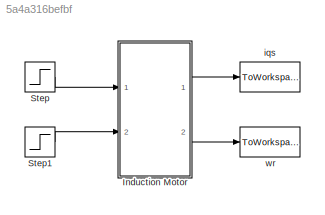
MODEL slx_5a4a316befbf
KIND model
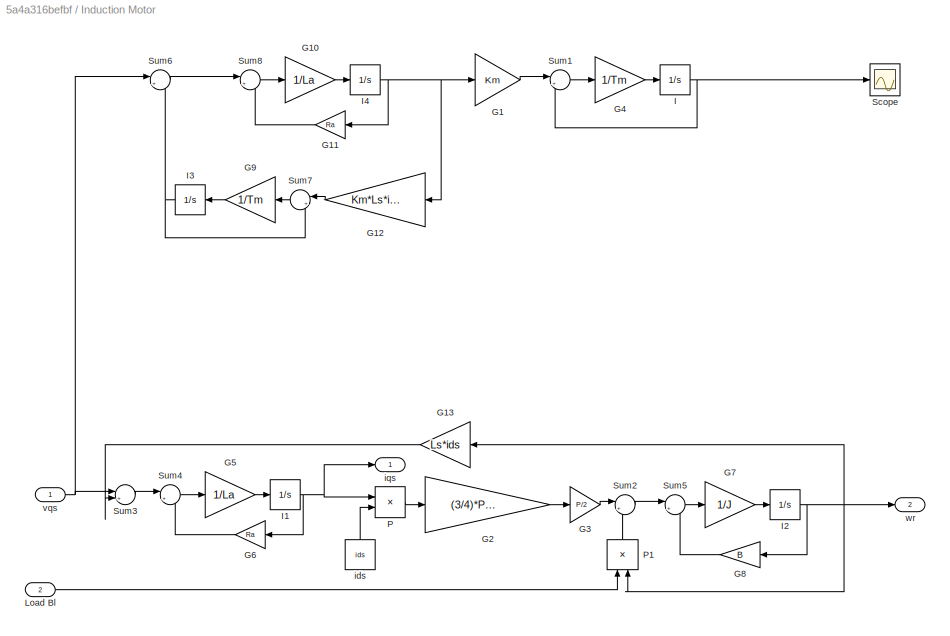
BLOCK [SubSystem] Induction Motor
  FunctionWithSeparateData = off
  MaskHideContents = off
  MinAlgLoopOccurrences = off
  Opaque = off
  Ports = [2, 2]
  PropExecContextOutsideSubsystem = off
  RTWSystemCode = Auto
  RequestExecContextInheritance = off
BLOCK [Gain] Induction Motor/G1
  Gain = Km
  OutDataTypeStr = Inherit: Inherit via internal rule
  ParamDataTypeStr = Inherit: Inherit via internal rule
  SaturateOnIntegerOverflow = off
BLOCK [Gain] Induction Motor/G10
  Gain = 1/La
  OutDataTypeStr = Inherit: Inherit via internal rule
  ParamDataTypeStr = Inherit: Inherit via internal rule
  SaturateOnIntegerOverflow = off
BLOCK [Gain] Induction Motor/G11
  Gain = Ra
  OutDataTypeStr = Inherit: Inherit via internal rule
  ParamDataTypeStr = Inherit: Inherit via internal rule
  SaturateOnIntegerOverflow = off
BLOCK [Gain] Induction Motor/G12
  Gain = Km*Ls*ids
  OutDataTypeStr = Inherit: Inherit via internal rule
  ParamDataTypeStr = Inherit: Inherit via internal rule
  SaturateOnIntegerOverflow = off
BLOCK [Gain] Induction Motor/G13
  Gain = Ls*ids
  OutDataTypeStr = Inherit: Inherit via internal rule
  ParamDataTypeStr = Inherit: Inherit via internal rule
  SaturateOnIntegerOverflow = off
BLOCK [Gain] Induction Motor/G2
  Gain = (3/4)*P*((Lm*Lm)/Lr)
  OutDataTypeStr = Inherit: Inherit via internal rule
  ParamDataTypeStr = Inherit: Inherit via internal rule
  SaturateOnIntegerOverflow = off
BLOCK [Gain] Induction Motor/G3
  Gain = P/2
  OutDataTypeStr = Inherit: Inherit via internal rule
  ParamDataTypeStr = Inherit: Inherit via internal rule
  SaturateOnIntegerOverflow = off
BLOCK [Gain] Induction Motor/G4
  Gain = 1/Tm
  OutDataTypeStr = Inherit: Inherit via internal rule
  ParamDataTypeStr = Inherit: Inherit via internal rule
  SaturateOnIntegerOverflow = off
BLOCK [Gain] Induction Motor/G5
  Gain = 1/La
  OutDataTypeStr = Inherit: Inherit via internal rule
  ParamDataTypeStr = Inherit: Inherit via internal rule
  SaturateOnIntegerOverflow = off
BLOCK [Gain] Induction Motor/G6
  Gain = Ra
  OutDataTypeStr = Inherit: Inherit via internal rule
  ParamDataTypeStr = Inherit: Inherit via internal rule
  SaturateOnIntegerOverflow = off
BLOCK [Gain] Induction Motor/G7
  Gain = 1/J
  OutDataTypeStr = Inherit: Inherit via internal rule
  ParamDataTypeStr = Inherit: Inherit via internal rule
  SaturateOnIntegerOverflow = off
BLOCK [Gain] Induction Motor/G8
  Gain = B
  OutDataTypeStr = Inherit: Inherit via internal rule
  ParamDataTypeStr = Inherit: Inherit via internal rule
  SaturateOnIntegerOverflow = off
BLOCK [Gain] Induction Motor/G9
  Gain = 1/Tm
  OutDataTypeStr = Inherit: Inherit via internal rule
  ParamDataTypeStr = Inherit: Inherit via internal rule
  SaturateOnIntegerOverflow = off
BLOCK [Integrator] Induction Motor/I
  Ports = [1, 1]
BLOCK [Integrator] Induction Motor/I1
  Ports = [1, 1]
BLOCK [Integrator] Induction Motor/I2
  Ports = [1, 1]
BLOCK [Integrator] Induction Motor/I3
  Ports = [1, 1]
BLOCK [Integrator] Induction Motor/I4
  Ports = [1, 1]
BLOCK [Inport] Induction Motor/Load Bl
  IconDisplay = Port number
  Port = 2
BLOCK [Product] Induction Motor/P
  InputSameDT = off
  OutDataTypeStr = Inherit: Inherit via internal rule
  Ports = [2, 1]
  RndMeth = Floor
  SaturateOnIntegerOverflow = off
BLOCK [Product] Induction Motor/P1
  InputSameDT = off
  OutDataTypeStr = Inherit: Inherit via internal rule
  Ports = [2, 1]
  RndMeth = Floor
  SaturateOnIntegerOverflow = off
BLOCK [Scope] Induction Motor/Scope
  DataFormat = StructureWithTime
  Floating = off
  NumInputPorts = 1
  Ports = [1]
  SampleTime = 0
  ShowLegends = off
BLOCK [Sum] Induction Motor/Sum1
  IconShape = round
  InputSameDT = off
  Inputs = |+-
  OutDataTypeStr = Inherit: Inherit via internal rule
  Ports = [2, 1]
  SaturateOnIntegerOverflow = off
BLOCK [Sum] Induction Motor/Sum2
  IconShape = round
  InputSameDT = off
  Inputs = |+-
  OutDataTypeStr = Inherit: Inherit via internal rule
  Ports = [2, 1]
  SaturateOnIntegerOverflow = off
BLOCK [Sum] Induction Motor/Sum3
  IconShape = round
  InputSameDT = off
  Inputs = |+-
  OutDataTypeStr = Inherit: Inherit via internal rule
  Ports = [2, 1]
  SaturateOnIntegerOverflow = off
BLOCK [Sum] Induction Motor/Sum4
  IconShape = round
  InputSameDT = off
  Inputs = |+-
  OutDataTypeStr = Inherit: Inherit via internal rule
  Ports = [2, 1]
  SaturateOnIntegerOverflow = off
BLOCK [Sum] Induction Motor/Sum5
  IconShape = round
  InputSameDT = off
  Inputs = |+-
  OutDataTypeStr = Inherit: Inherit via internal rule
  Ports = [2, 1]
  SaturateOnIntegerOverflow = off
BLOCK [Sum] Induction Motor/Sum6
  IconShape = round
  InputSameDT = off
  Inputs = |+-
  OutDataTypeStr = Inherit: Inherit via internal rule
  Ports = [2, 1]
  SaturateOnIntegerOverflow = off
BLOCK [Sum] Induction Motor/Sum7
  IconShape = round
  InputSameDT = off
  Inputs = |+-
  OutDataTypeStr = Inherit: Inherit via internal rule
  Ports = [2, 1]
  SaturateOnIntegerOverflow = off
BLOCK [Sum] Induction Motor/Sum8
  IconShape = round
  InputSameDT = off
  Inputs = |+-
  OutDataTypeStr = Inherit: Inherit via internal rule
  Ports = [2, 1]
  SaturateOnIntegerOverflow = off
BLOCK [Constant] Induction Motor/ids
  Value = ids
BLOCK [Outport] Induction Motor/iqs
  IconDisplay = Port number
BLOCK [Inport] Induction Motor/vqs
  IconDisplay = Port number
BLOCK [Outport] Induction Motor/wr
  IconDisplay = Port number
  Port = 2
BLOCK [Step] Step
  After = 200*sqrt(2)/sqrt(3)
  SampleTime = 0
  Time = 0.1
BLOCK [Step] Step1
  After = 0.025
  SampleTime = 0
  Time = 0.3
BLOCK [ToWorkspace] iqs
  MaxDataPoints = inf
  Ports = [1]
  SampleTime = -1
  SaveFormat = Timeseries
  VariableName = iqs
BLOCK [ToWorkspace] wr
  MaxDataPoints = inf
  Ports = [1]
  SampleTime = -1
  SaveFormat = Timeseries
  VariableName = wr
LINE Induction Motor/G10:1 -> Induction Motor/I4:1
LINE Induction Motor/G11:1 -> Induction Motor/Sum8:2
LINE Induction Motor/G12:1 -> Induction Motor/Sum7:1
LINE Induction Motor/G13:1 -> Induction Motor/Sum3:2
LINE Induction Motor/G1:1 -> Induction Motor/Sum1:1
LINE Induction Motor/G2:1 -> Induction Motor/G3:1
LINE Induction Motor/G3:1 -> Induction Motor/Sum2:1
LINE Induction Motor/G4:1 -> Induction Motor/I:1
LINE Induction Motor/G5:1 -> Induction Motor/I1:1
LINE Induction Motor/G6:1 -> Induction Motor/Sum4:2
LINE Induction Motor/G7:1 -> Induction Motor/I2:1
LINE Induction Motor/G8:1 -> Induction Motor/Sum5:2
LINE Induction Motor/G9:1 -> Induction Motor/I3:1
NET Induction Motor/I1:1 -> Induction Motor/G6:1, Induction Motor/P:1, Induction Motor/iqs:1
NET Induction Motor/I2:1 -> Induction Motor/G13:1, Induction Motor/G8:1, Induction Motor/P1:2, Induction Motor/wr:1
NET Induction Motor/I3:1 -> Induction Motor/Sum6:2, Induction Motor/Sum7:2
NET Induction Motor/I4:1 -> Induction Motor/G11:1, Induction Motor/G12:1, Induction Motor/G1:1
NET Induction Motor/I:1 -> Induction Motor/Scope:1, Induction Motor/Sum1:2
LINE Induction Motor/Load Bl:1 -> Induction Motor/P1:1
LINE Induction Motor/P1:1 -> Induction Motor/Sum2:2
LINE Induction Motor/P:1 -> Induction Motor/G2:1
LINE Induction Motor/Sum1:1 -> Induction Motor/G4:1
LINE Induction Motor/Sum2:1 -> Induction Motor/Sum5:1
LINE Induction Motor/Sum3:1 -> Induction Motor/Sum4:1
LINE Induction Motor/Sum4:1 -> Induction Motor/G5:1
LINE Induction Motor/Sum5:1 -> Induction Motor/G7:1
LINE Induction Motor/Sum6:1 -> Induction Motor/Sum8:1
LINE Induction Motor/Sum7:1 -> Induction Motor/G9:1
LINE Induction Motor/Sum8:1 -> Induction Motor/G10:1
LINE Induction Motor/ids:1 -> Induction Motor/P:2
NET Induction Motor/vqs:1 -> Induction Motor/Sum3:1, Induction Motor/Sum6:1
LINE Induction Motor:1 -> iqs:1
LINE Induction Motor:2 -> wr:1
LINE Step1:1 -> Induction Motor:2
LINE Step:1 -> Induction Motor:1
note: NET lines group one-source signal fan-out (src -> all destinations, sorted); 1:1 wires keep LINE
